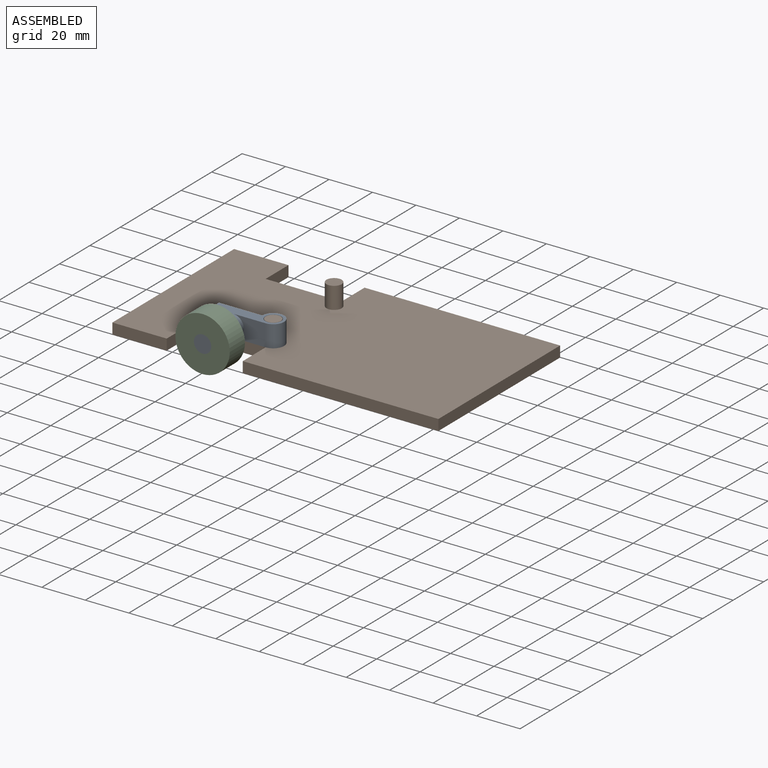
[diagram: assembled view]
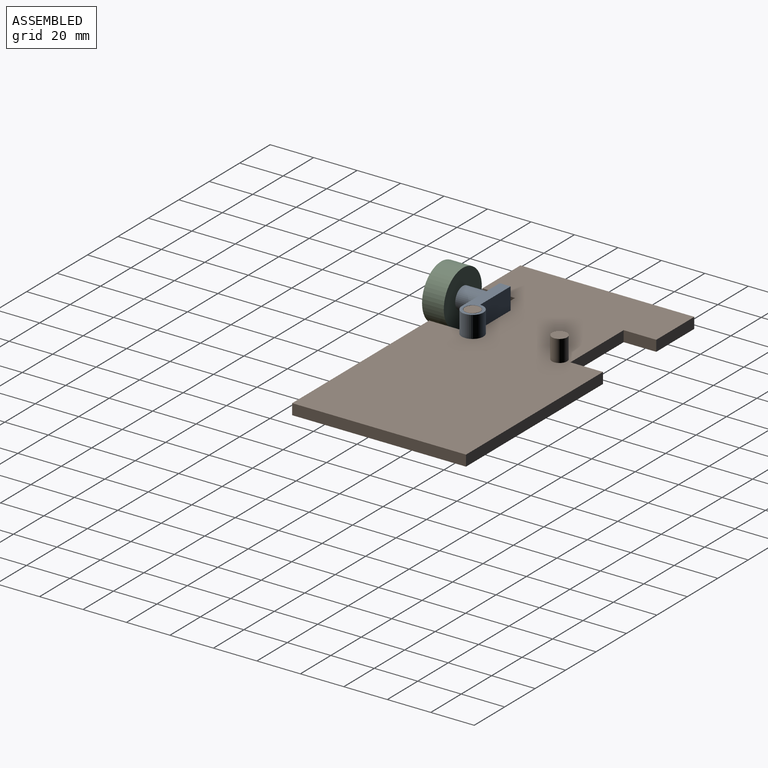
[diagram: assembled view, second angle]
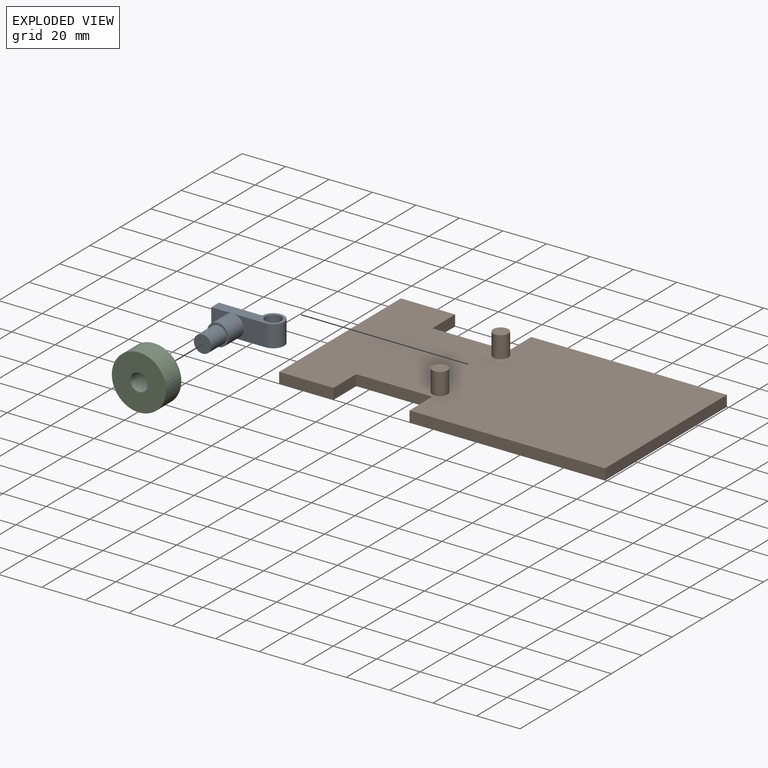
[diagram: exploded view]
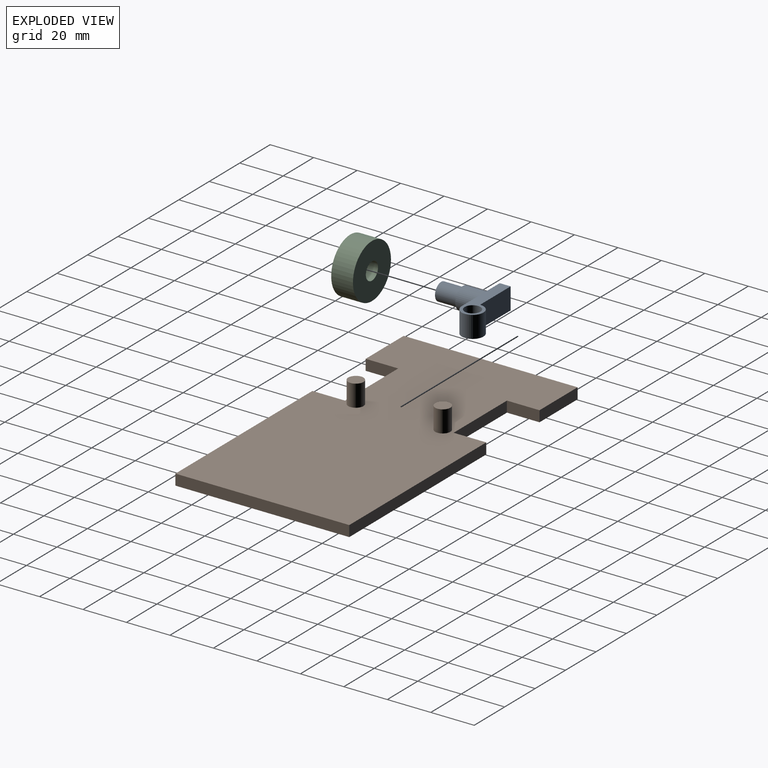
[diagram: exploded view, second angle]
ASSEMBLY  parts=3 mates=2
PART A: 12 faces, bbox 30x30x10 mm
  f0: plane 15x10mm, normal (0,-1,0), area 110.7mm2, adj f2,f6,f7,f8
  f1: plane 10x10mm, normal (0,-1,0), area 60.7mm2, adj f4,f6,f7,f8
  f2: cylinder r=5mm len=10mm, axis (0,0,-1), area 235.6mm2, adj f0,f3,f6,f7
  f3: plane 20x10mm, normal (0,1,0), area 200mm2, adj f2,f4,f6,f7
  f4: plane 10x5mm, normal (-1,0,0), area 50mm2, adj f1,f3,f6,f7
  f5: cylinder r=3.65mm len=10mm, axis (0,0,-1), area 229.3mm2, adj f6,f7
  f6: plane 30x10mm, normal (0,0,1), area 142.1mm2, adj f0,f1,f2,f3,f4,f5
  f7: plane 30x10mm, normal (0,0,-1), area 142.1mm2, adj f0,f1,f2,f3,f4,f5
  f8: cylinder r=5mm len=10mm, axis (0,1,0), area 314.2mm2, adj f0,f1,f9
  f9: plane 10x10mm, normal (0,-1,0), area 28.3mm2, adj f8,f11
  f10: plane 8x8mm, normal (0,-1,0), area 50.3mm2, adj f11
  f11: cylinder r=4mm len=10mm, axis (0,1,0), area 251.3mm2, adj f9,f10
PART B: 18 faces, bbox 150x80x15 mm
  f0: plane 25x5mm, normal (0,1,0), area 125mm2, adj f5,f6,f7,f11
  f1: plane 25x5mm, normal (0,-1,0), area 125mm2, adj f5,f6,f7,f9
  f2: plane 90x5mm, normal (0,-1,0), area 450mm2, adj f3,f6,f7,f10
  f3: plane 80x5mm, normal (1,0,0), area 400mm2, adj f2,f4,f6,f7
  f4: plane 90x5mm, normal (0,1,0), area 450mm2, adj f3,f6,f7,f13
  f5: plane 80x5mm, normal (-1,0,0), area 400mm2, adj f0,f1,f6,f7
  f6: plane 150x80mm, normal (0,0,1), area 10873mm2, adj f0,f1,f2,f3,f4,f5,f8,f9
  f7: plane 150x80mm, normal (0,0,-1), area 10950mm2, adj f0,f1,f2,f3,f4,f5,f8,f9
  f8: plane 35x5mm, normal (0,-1,0), area 175mm2, adj f6,f7,f9,f10
  f9: plane 15x5mm, normal (1,0,0), area 75mm2, adj f1,f6,f7,f8
  f10: plane 15x5mm, normal (-1,0,0), area 75mm2, adj f2,f6,f7,f8
  f11: plane 15x5mm, normal (1,0,0), area 75mm2, adj f0,f6,f7,f12
  f12: plane 35x5mm, normal (0,1,0), area 175mm2, adj f6,f7,f11,f13
  f13: plane 15x5mm, normal (-1,0,0), area 75mm2, adj f4,f6,f7,f12
  f14: cylinder r=3.5mm len=10mm, axis (0,0,-1), area 219.9mm2, adj f6,f15
  f15: plane 7x7mm, normal (0,0,1), area 38.5mm2, adj f14
  f16: cylinder r=3.5mm len=10mm, axis (0,0,-1), area 219.9mm2, adj f6,f17
  f17: plane 7x7mm, normal (0,0,1), area 38.5mm2, adj f16
PART C: 4 faces, bbox 25x10x25 mm
  f0: cylinder r=4mm len=10mm, axis (0,1,0), area 251.3mm2, adj f2,f3
  f1: cylinder r=12.5mm len=25mm, axis (0,1,0), area 785.4mm2, adj f2,f3
  f2: plane 25x25mm, normal (0,-1,0), area 440.6mm2, adj f0,f1
  f3: plane 25x25mm, normal (0,1,0), area 440.6mm2, adj f0,f1
PLACE A t=(25.76,-13.94,-10)mm
PLACE B t=(30,-52.3,-15)mm
PLACE C t=(0,0,-5)mm
MATE revolute A.f2 <-> B.f14  axis (0,0,-1) through (15,-72.3,-5)mm
MATE cylindrical C.f1 <-> A.f8  axis (0,-1,0) through (0,-97.3,-5)mm
